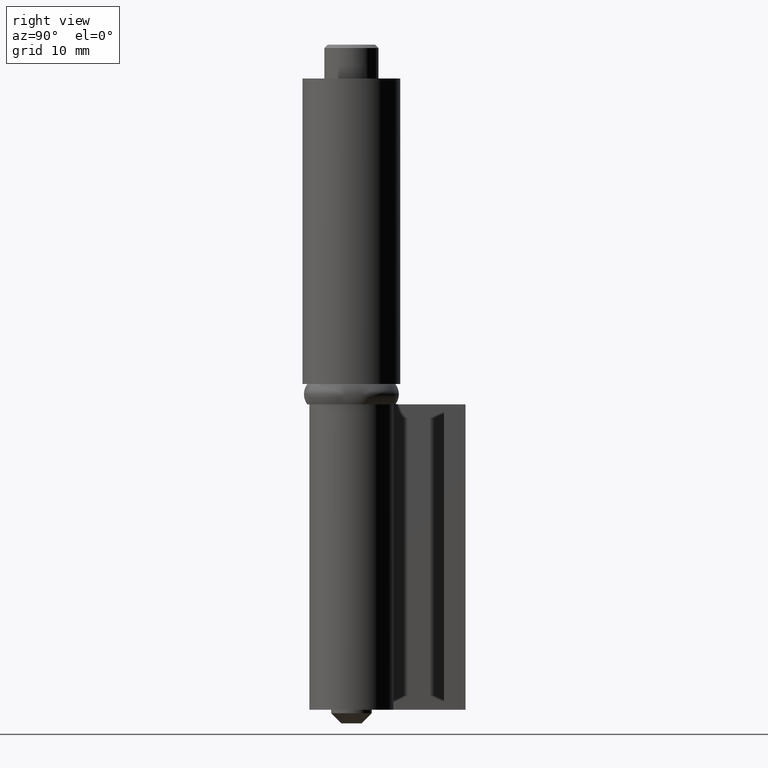
[diagram: clean part render]
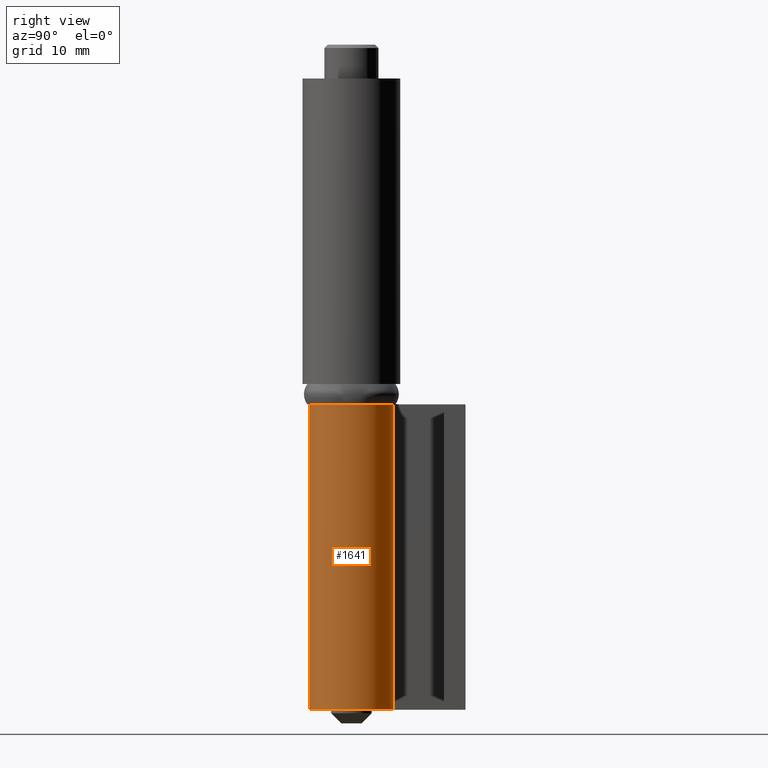
[diagram: same view with one face highlighted and labeled with its STEP entity id]
A machine part, right view. The second image highlights one B-rep face of the part: STEP entity #1641.
In plain terms, the highlighted face is a freeform B-spline surface patch.
Its self-contained STEP definition (entity closure, byte-faithful):
#1310=CARTESIAN_POINT('',(-5.453210063806460,-2.950000000000000,2.0));
#1311=VERTEX_POINT('',#1310);
#1317=CARTESIAN_POINT('',(0.0,-6.199997000000000,2.0));
#1318=VERTEX_POINT('',#1317);
#1319=CARTESIAN_POINT('',(-5.453210063806460,-2.950000000000000,2.0));
#1320=CARTESIAN_POINT('',(-7.700628576078768,1.204454099070040,2.000000000000000));
#1321=CARTESIAN_POINT('',(-4.291982987927462,4.474245207455891,2.0));
#1322=CARTESIAN_POINT('',(-0.883337399776157,7.744036315841743,2.000000000000000));
#1323=CARTESIAN_POINT('',(3.174114049620774,5.325881708941991,2.0));
#1324=CARTESIAN_POINT('',(7.231565499017704,2.907727102042243,2.000000000000000));
#1325=CARTESIAN_POINT('',(5.977476779354328,-1.646133990258258,2.0));
#1326=CARTESIAN_POINT('',(4.723388059690953,-6.199995082558759,2.000000000000000));
#1327=CARTESIAN_POINT('',(0.0,-6.199997000000000,2.0));
#1335=(BOUNDED_CURVE()B_SPLINE_CURVE(2,(#1319,#1320,#1321,#1322,#1323,#1324,#1325,#1326,#1327),.UNSPECIFIED.,.F.,.U.)B_SPLINE_CURVE_WITH_KNOTS((3,2,2,2,3),(0.0,0.250000000000000,0.500000000000000,0.750000000000000,1.0),.UNSPECIFIED.)CURVE()GEOMETRIC_REPRESENTATION_ITEM()RATIONAL_B_SPLINE_CURVE((1.0,0.795457786386864,1.0,0.795457786386864,1.0,0.795457786386864,1.0,0.795457786386864,1.0))REPRESENTATION_ITEM(''));
#1336=EDGE_CURVE('',#1311,#1318,#1335,.T.);
#1476=CARTESIAN_POINT('',(0.0,-6.199997000000000,47.0));
#1477=VERTEX_POINT('',#1476);
#1483=CARTESIAN_POINT('',(-5.453210063806460,-2.950000000000000,47.0));
#1484=VERTEX_POINT('',#1483);
#1485=CARTESIAN_POINT('',(-5.453210063806460,-2.950000000000000,47.0));
#1486=CARTESIAN_POINT('',(-7.700628576078768,1.204454099070040,47.0));
#1487=CARTESIAN_POINT('',(-4.291982987927462,4.474245207455891,47.0));
#1488=CARTESIAN_POINT('',(-0.883337399776157,7.744036315841743,47.0));
#1489=CARTESIAN_POINT('',(3.174114049620774,5.325881708941991,47.0));
#1490=CARTESIAN_POINT('',(7.231565499017704,2.907727102042243,47.0));
#1491=CARTESIAN_POINT('',(5.977476779354328,-1.646133990258258,47.0));
#1492=CARTESIAN_POINT('',(4.723388059690953,-6.199995082558759,47.0));
#1493=CARTESIAN_POINT('',(0.0,-6.199997000000000,47.0));
#1501=(BOUNDED_CURVE()B_SPLINE_CURVE(2,(#1485,#1486,#1487,#1488,#1489,#1490,#1491,#1492,#1493),.UNSPECIFIED.,.F.,.U.)B_SPLINE_CURVE_WITH_KNOTS((3,2,2,2,3),(0.0,0.250000000000000,0.500000000000000,0.750000000000000,1.0),.UNSPECIFIED.)CURVE()GEOMETRIC_REPRESENTATION_ITEM()RATIONAL_B_SPLINE_CURVE((1.0,0.795457786386864,1.0,0.795457786386864,1.0,0.795457786386864,1.0,0.795457786386864,1.0))REPRESENTATION_ITEM(''));
#1502=EDGE_CURVE('',#1484,#1477,#1501,.T.);
#1601=CARTESIAN_POINT('',(-5.453210063806460,-2.950000000000000,47.0));
#1602=CARTESIAN_POINT('',(-5.453210063806460,-2.950000000000000,2.0));
#1603=QUASI_UNIFORM_CURVE('',1,(#1601,#1602),.UNSPECIFIED.,.F.,.U.);
#1604=EDGE_CURVE('',#1484,#1311,#1603,.T.);
#1609=CARTESIAN_POINT('',(-0.054104520089913,-6.199763922997859,48.125000000000007));
#1610=CARTESIAN_POINT('',(-0.054104520089913,-6.199763922997859,0.846874999999997));
#1611=CARTESIAN_POINT('',(7.422393275947076,-6.265010330801769,48.125000000000007));
#1612=CARTESIAN_POINT('',(7.422393275947076,-6.265010330801769,0.846874999999997));
#1613=CARTESIAN_POINT('',(6.102650483817961,1.094375197250184,48.125000000000007));
#1614=CARTESIAN_POINT('',(6.102650483817961,1.094375197250184,0.846874999999997));
#1615=CARTESIAN_POINT('',(4.782907691688848,8.453760725302137,48.125000000000007));
#1616=CARTESIAN_POINT('',(4.782907691688848,8.453760725302137,0.846874999999997));
#1617=CARTESIAN_POINT('',(-2.205034723252232,5.794637337163728,48.125000000000007));
#1618=CARTESIAN_POINT('',(-2.205034723252232,5.794637337163728,0.846874999999997));
#1619=CARTESIAN_POINT('',(-9.192977138193312,3.135513949025321,48.125000000000007));
#1620=CARTESIAN_POINT('',(-9.192977138193312,3.135513949025321,0.846874999999997));
#1621=CARTESIAN_POINT('',(-5.286369018995375,-3.239491101238877,48.125000000000007));
#1622=CARTESIAN_POINT('',(-5.286369018995375,-3.239491101238877,0.846874999999997));
#1630=(BOUNDED_SURFACE()B_SPLINE_SURFACE(1,2,((#1609,#1611,#1613,#1615,#1617,#1619,#1621),(#1610,#1612,#1614,#1616,#1618,#1620,#1622)),.UNSPECIFIED.,.F.,.F.,.U.)B_SPLINE_SURFACE_WITH_KNOTS((2,2),(3,2,2,3),(0.0,47.278125000000010),(0.0,11.652376125131500,23.304752250263000,34.957128375394497),.UNSPECIFIED.)GEOMETRIC_REPRESENTATION_ITEM()RATIONAL_B_SPLINE_SURFACE(((1.0,0.638320090924328,1.0,0.638320090924328,1.0,0.638320090924328,1.0),(1.0,0.638320090924328,1.0,0.638320090924328,1.0,0.638320090924328,1.0)))REPRESENTATION_ITEM('')SURFACE());
#1631=ORIENTED_EDGE('',*,*,#1336,.F.);
#1632=ORIENTED_EDGE('',*,*,#1604,.F.);
#1633=ORIENTED_EDGE('',*,*,#1502,.T.);
#1634=CARTESIAN_POINT('',(0.0,-6.199997000000000,47.0));
#1635=CARTESIAN_POINT('',(0.0,-6.199997000000000,2.0));
#1636=QUASI_UNIFORM_CURVE('',1,(#1634,#1635),.UNSPECIFIED.,.F.,.U.);
#1637=EDGE_CURVE('',#1477,#1318,#1636,.T.);
#1638=ORIENTED_EDGE('',*,*,#1637,.T.);
#1639=EDGE_LOOP('',(#1631,#1632,#1633,#1638));
#1640=FACE_OUTER_BOUND('',#1639,.T.);
#1641=ADVANCED_FACE('',(#1640),#1630,.T.);